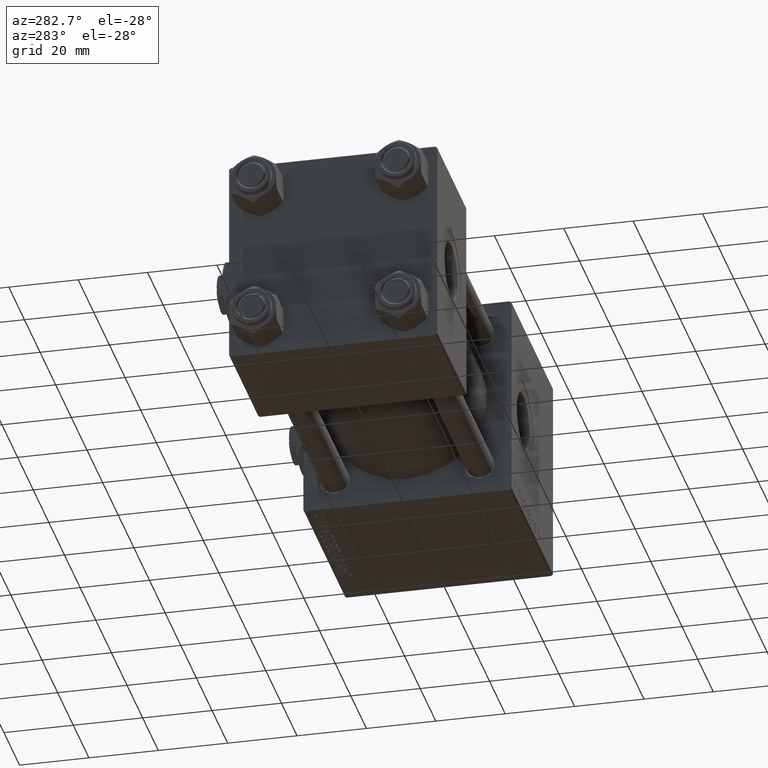
[diagram: clean part render]
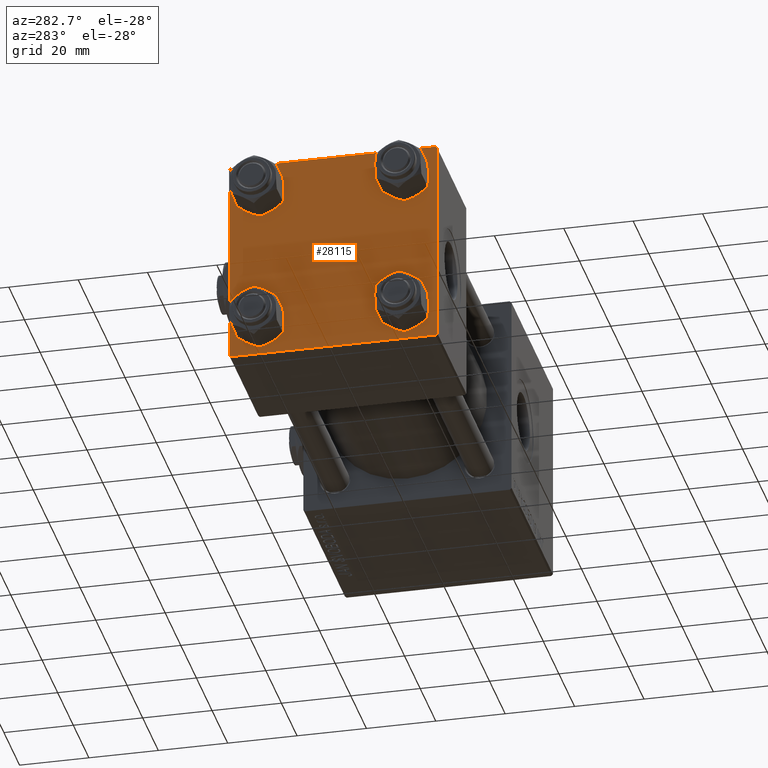
[diagram: same view with one face highlighted and labeled with its STEP entity id]
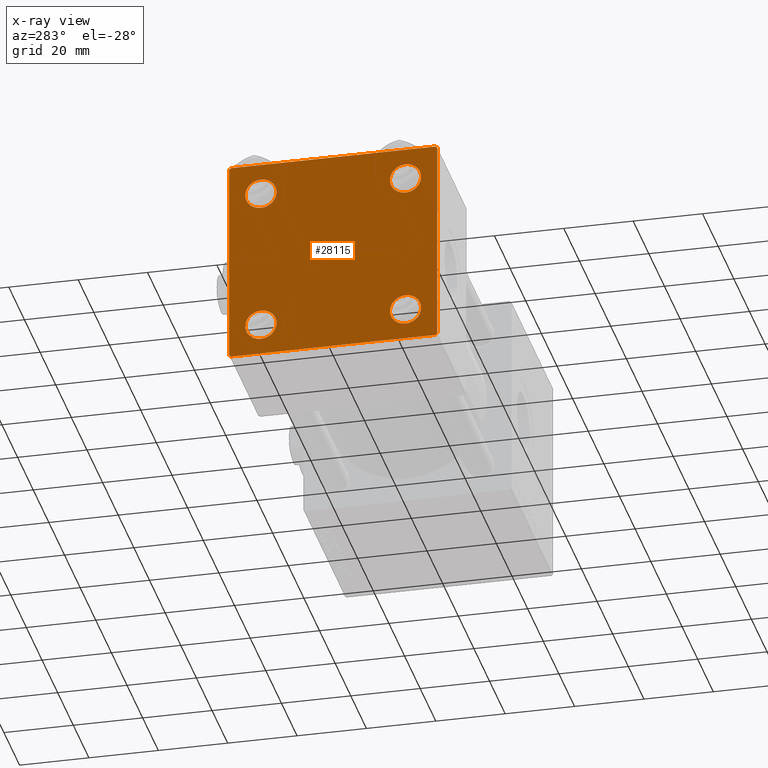
[diagram: x-ray of the same camera — body ghosted, the highlighted face saturated]
A machine part, auxiliary view. The second image highlights one B-rep face of the part: STEP entity #28115.
The next image is the same camera in x-ray: the body ghosted, the highlighted face saturated — about 0% of this face is hidden behind the body in this view.
In plain terms, the highlighted planar face has unit normal (-1, 0, 0).
Its self-contained STEP definition (entity closure, byte-faithful):
#132 = CARTESIAN_POINT ( 'NONE',  ( 0.000000000000000000, 29.99999999999999289, 29.50000000000000000 ) ) ;
#1140 = VECTOR ( 'NONE', #26643, 999.9999999999998863 ) ;
#1359 = CARTESIAN_POINT ( 'NONE',  ( 0.000000000000000000, 20.84999999999999787, 25.35000000000001918 ) ) ;
#2050 = EDGE_LOOP ( 'NONE', ( #32117, #32986 ) ) ;
#3521 = VERTEX_POINT ( 'NONE', #50559 ) ;
#3821 = CARTESIAN_POINT ( 'NONE',  ( 0.000000000000000000, 20.84999999999999787, -20.85000000000000142 ) ) ;
#4052 = CARTESIAN_POINT ( 'NONE',  ( 0.000000000000000000, 29.49999999999997868, -30.00000000000000000 ) ) ;
#4774 = DIRECTION ( 'NONE',  ( 1.000000000000000000, -0.000000000000000000, 0.000000000000000000 ) ) ;
#4954 = VECTOR ( 'NONE', #24931, 1000.000000000000114 ) ;
#5224 = EDGE_LOOP ( 'NONE', ( #24616, #50191, #20004, #10166, #35507, #42538, #9103, #32421 ) ) ;
#5303 = DIRECTION ( 'NONE',  ( -0.000000000000000000, 0.7071067811865474617, 0.7071067811865474617 ) ) ;
#5859 = LINE ( 'NONE', #6890, #50387 ) ;
#6136 = DIRECTION ( 'NONE',  ( 0.000000000000000000, 0.000000000000000000, -1.000000000000000000 ) ) ;
#6890 = CARTESIAN_POINT ( 'NONE',  ( 0.000000000000000000, 29.99999999999999289, 30.00000000000000000 ) ) ;
#7047 = DIRECTION ( 'NONE',  ( -1.000000000000000000, 0.000000000000000000, -0.000000000000000000 ) ) ;
#7123 = AXIS2_PLACEMENT_3D ( 'NONE', #3821, #36185, #48392 ) ;
#7192 = EDGE_CURVE ( 'NONE', #39348, #44204, #7542, .T. ) ;
#7378 = EDGE_CURVE ( 'NONE', #3521, #48752, #39028, .T. ) ;
#7542 = CIRCLE ( 'NONE', #20279, 4.500000000000017764 ) ;
#7952 = CARTESIAN_POINT ( 'NONE',  ( 0.000000000000000000, -20.84999999999999076, 20.85000000000000497 ) ) ;
#8229 = DIRECTION ( 'NONE',  ( 0.000000000000000000, 0.000000000000000000, 1.000000000000000000 ) ) ;
#8331 = CARTESIAN_POINT ( 'NONE',  ( 0.000000000000000000, 20.84999999999999787, 20.85000000000000142 ) ) ;
#9068 = ORIENTED_EDGE ( 'NONE', *, *, #48962, .T. ) ;
#9103 = ORIENTED_EDGE ( 'NONE', *, *, #50490, .F. ) ;
#9568 = EDGE_CURVE ( 'NONE', #44251, #49807, #38210, .T. ) ;
#9584 = EDGE_CURVE ( 'NONE', #48569, #12189, #13625, .T. ) ;
#10166 = ORIENTED_EDGE ( 'NONE', *, *, #38864, .T. ) ;
#10458 = LINE ( 'NONE', #30883, #1140 ) ;
#10781 = DIRECTION ( 'NONE',  ( 0.000000000000000000, 0.7071067811865474617, -0.7071067811865474617 ) ) ;
#10842 = CIRCLE ( 'NONE', #43037, 4.500000000000017764 ) ;
#11145 = EDGE_CURVE ( 'NONE', #43224, #43757, #30426, .T. ) ;
#11344 = CIRCLE ( 'NONE', #7123, 4.500000000000017764 ) ;
#11486 = DIRECTION ( 'NONE',  ( 1.000000000000000000, -0.000000000000000000, 0.000000000000000000 ) ) ;
#11843 = VECTOR ( 'NONE', #6136, 1000.000000000000000 ) ;
#12189 = VERTEX_POINT ( 'NONE', #33282 ) ;
#12221 = DIRECTION ( 'NONE',  ( 1.000000000000000000, -0.000000000000000000, 0.000000000000000000 ) ) ;
#12440 = CARTESIAN_POINT ( 'NONE',  ( 0.000000000000000000, -29.49999999999998579, 29.99999999999999289 ) ) ;
#13625 = CIRCLE ( 'NONE', #20390, 4.500000000000017764 ) ;
#13853 = CARTESIAN_POINT ( 'NONE',  ( 0.000000000000000000, 29.99999999999999289, 30.00000000000000000 ) ) ;
#14768 = FACE_BOUND ( 'NONE', #2050, .T. ) ;
#14873 = CARTESIAN_POINT ( 'NONE',  ( 0.000000000000000000, 20.84999999999999787, 16.34999999999998366 ) ) ;
#15549 = AXIS2_PLACEMENT_3D ( 'NONE', #36023, #36545, #39497 ) ;
#15718 = EDGE_CURVE ( 'NONE', #27554, #34402, #35832, .T. ) ;
#16481 = DIRECTION ( 'NONE',  ( 0.000000000000000000, -1.000000000000000000, -1.156482317317871725E-16 ) ) ;
#16740 = LINE ( 'NONE', #45927, #52084 ) ;
#16890 = EDGE_CURVE ( 'NONE', #3521, #46345, #26536, .T. ) ;
#17032 = CARTESIAN_POINT ( 'NONE',  ( 0.000000000000000000, 20.84999999999999787, -16.34999999999998366 ) ) ;
#17249 = ORIENTED_EDGE ( 'NONE', *, *, #15718, .T. ) ;
#17514 = DIRECTION ( 'NONE',  ( 1.000000000000000000, -0.000000000000000000, 0.000000000000000000 ) ) ;
#17715 = EDGE_LOOP ( 'NONE', ( #9068, #48011 ) ) ;
#18155 = AXIS2_PLACEMENT_3D ( 'NONE', #7952, #40581, #44050 ) ;
#19503 = DIRECTION ( 'NONE',  ( 0.000000000000000000, 0.000000000000000000, 1.000000000000000000 ) ) ;
#20004 = ORIENTED_EDGE ( 'NONE', *, *, #50363, .T. ) ;
#20279 = AXIS2_PLACEMENT_3D ( 'NONE', #49349, #17514, #41389 ) ;
#20390 = AXIS2_PLACEMENT_3D ( 'NONE', #49092, #4774, #44597 ) ;
#21757 = EDGE_CURVE ( 'NONE', #34402, #27554, #31513, .T. ) ;
#22071 = ORIENTED_EDGE ( 'NONE', *, *, #21757, .T. ) ;
#23081 = DIRECTION ( 'NONE',  ( 0.000000000000000000, -1.000000000000000000, -1.156482317317871725E-16 ) ) ;
#23154 = AXIS2_PLACEMENT_3D ( 'NONE', #47130, #7047, #39424 ) ;
#23240 = FACE_OUTER_BOUND ( 'NONE', #5224, .T. ) ;
#23507 = CARTESIAN_POINT ( 'NONE',  ( 0.000000000000000000, 29.49999999999999289, 30.00000000000000000 ) ) ;
#23711 = CARTESIAN_POINT ( 'NONE',  ( 0.000000000000000000, -30.00000000000000000, -29.50000000000001776 ) ) ;
#24085 = VERTEX_POINT ( 'NONE', #34170 ) ;
#24616 = ORIENTED_EDGE ( 'NONE', *, *, #28575, .T. ) ;
#24931 = DIRECTION ( 'NONE',  ( 0.000000000000000000, -0.7071067811865474617, 0.7071067811865474617 ) ) ;
#25041 = ORIENTED_EDGE ( 'NONE', *, *, #9568, .T. ) ;
#25873 = EDGE_CURVE ( 'NONE', #44204, #39348, #11344, .T. ) ;
#26349 = CARTESIAN_POINT ( 'NONE',  ( 0.000000000000000000, 20.84999999999999787, -25.35000000000001918 ) ) ;
#26536 = LINE ( 'NONE', #42723, #31766 ) ;
#26643 = DIRECTION ( 'NONE',  ( -0.000000000000000000, -0.7071067811865574537, -0.7071067811865376918 ) ) ;
#26971 = FACE_BOUND ( 'NONE', #33703, .T. ) ;
#27458 = EDGE_CURVE ( 'NONE', #45378, #29257, #10458, .T. ) ;
#27554 = VERTEX_POINT ( 'NONE', #1359 ) ;
#28115 = ADVANCED_FACE ( 'NONE', ( #34918, #43413, #14768, #26971, #23240 ), #30953, .T. ) ;
#28575 = EDGE_CURVE ( 'NONE', #43757, #45378, #29233, .T. ) ;
#29233 = LINE ( 'NONE', #13853, #40151 ) ;
#29257 = VERTEX_POINT ( 'NONE', #4052 ) ;
#30426 = LINE ( 'NONE', #46596, #51808 ) ;
#30883 = CARTESIAN_POINT ( 'NONE',  ( 0.000000000000000000, 29.74999999999957723, -29.75000000000040501 ) ) ;
#30953 = PLANE ( 'NONE',  #23154 ) ;
#31070 = CARTESIAN_POINT ( 'NONE',  ( 0.000000000000000000, -30.00000000000000000, 29.99999999999999289 ) ) ;
#31513 = CIRCLE ( 'NONE', #45083, 4.500000000000017764 ) ;
#31766 = VECTOR ( 'NONE', #5303, 1000.000000000000114 ) ;
#32117 = ORIENTED_EDGE ( 'NONE', *, *, #7192, .T. ) ;
#32421 = ORIENTED_EDGE ( 'NONE', *, *, #11145, .T. ) ;
#32986 = ORIENTED_EDGE ( 'NONE', *, *, #25873, .T. ) ;
#33237 = ORIENTED_EDGE ( 'NONE', *, *, #41477, .T. ) ;
#33282 = CARTESIAN_POINT ( 'NONE',  ( 0.000000000000000000, -20.84999999999999076, 25.35000000000002274 ) ) ;
#33703 = EDGE_LOOP ( 'NONE', ( #17249, #22071 ) ) ;
#34170 = CARTESIAN_POINT ( 'NONE',  ( 0.000000000000000000, -29.50000000000000000, -30.00000000000000711 ) ) ;
#34402 = VERTEX_POINT ( 'NONE', #14873 ) ;
#34918 = FACE_BOUND ( 'NONE', #17715, .T. ) ;
#35507 = ORIENTED_EDGE ( 'NONE', *, *, #7378, .F. ) ;
#35832 = CIRCLE ( 'NONE', #15549, 4.500000000000017764 ) ;
#36023 = CARTESIAN_POINT ( 'NONE',  ( 0.000000000000000000, 20.84999999999999787, 20.85000000000000142 ) ) ;
#36185 = DIRECTION ( 'NONE',  ( 1.000000000000000000, -0.000000000000000000, 0.000000000000000000 ) ) ;
#36352 = CARTESIAN_POINT ( 'NONE',  ( 0.000000000000000000, -20.84999999999999076, -20.85000000000000497 ) ) ;
#36545 = DIRECTION ( 'NONE',  ( 1.000000000000000000, -0.000000000000000000, 0.000000000000000000 ) ) ;
#37437 = DIRECTION ( 'NONE',  ( 0.000000000000000000, 0.000000000000000000, 1.000000000000000000 ) ) ;
#37555 = EDGE_LOOP ( 'NONE', ( #25041, #33237 ) ) ;
#38210 = CIRCLE ( 'NONE', #50904, 4.500000000000017764 ) ;
#38223 = CARTESIAN_POINT ( 'NONE',  ( 0.000000000000000000, -20.84999999999999076, -25.35000000000002274 ) ) ;
#38864 = EDGE_CURVE ( 'NONE', #24085, #48752, #45616, .T. ) ;
#39028 = LINE ( 'NONE', #31070, #11843 ) ;
#39348 = VERTEX_POINT ( 'NONE', #17032 ) ;
#39424 = DIRECTION ( 'NONE',  ( -0.000000000000000000, 0.000000000000000000, 1.000000000000000000 ) ) ;
#39497 = DIRECTION ( 'NONE',  ( 0.000000000000000000, 0.000000000000000000, 1.000000000000000000 ) ) ;
#40151 = VECTOR ( 'NONE', #45431, 1000.000000000000000 ) ;
#40581 = DIRECTION ( 'NONE',  ( 1.000000000000000000, -0.000000000000000000, 0.000000000000000000 ) ) ;
#40698 = DIRECTION ( 'NONE',  ( 1.000000000000000000, -0.000000000000000000, 0.000000000000000000 ) ) ;
#41389 = DIRECTION ( 'NONE',  ( 0.000000000000000000, 0.000000000000000000, 1.000000000000000000 ) ) ;
#41477 = EDGE_CURVE ( 'NONE', #49807, #44251, #10842, .T. ) ;
#42538 = ORIENTED_EDGE ( 'NONE', *, *, #16890, .T. ) ;
#42723 = CARTESIAN_POINT ( 'NONE',  ( -0.000000000000000000, -29.74999999999999645, 29.74999999999999645 ) ) ;
#42737 = CIRCLE ( 'NONE', #18155, 4.500000000000017764 ) ;
#43037 = AXIS2_PLACEMENT_3D ( 'NONE', #47821, #11486, #37437 ) ;
#43224 = VERTEX_POINT ( 'NONE', #23507 ) ;
#43413 = FACE_BOUND ( 'NONE', #37555, .T. ) ;
#43757 = VERTEX_POINT ( 'NONE', #132 ) ;
#44050 = DIRECTION ( 'NONE',  ( 0.000000000000000000, 0.000000000000000000, 1.000000000000000000 ) ) ;
#44204 = VERTEX_POINT ( 'NONE', #26349 ) ;
#44251 = VERTEX_POINT ( 'NONE', #47794 ) ;
#44597 = DIRECTION ( 'NONE',  ( 0.000000000000000000, 0.000000000000000000, 1.000000000000000000 ) ) ;
#45083 = AXIS2_PLACEMENT_3D ( 'NONE', #8331, #40698, #19503 ) ;
#45378 = VERTEX_POINT ( 'NONE', #50168 ) ;
#45431 = DIRECTION ( 'NONE',  ( 0.000000000000000000, 0.000000000000000000, -1.000000000000000000 ) ) ;
#45616 = LINE ( 'NONE', #50399, #4954 ) ;
#45927 = CARTESIAN_POINT ( 'NONE',  ( 0.000000000000000000, 29.99999999999999289, -30.00000000000000000 ) ) ;
#46345 = VERTEX_POINT ( 'NONE', #12440 ) ;
#46596 = CARTESIAN_POINT ( 'NONE',  ( 0.000000000000000000, 29.74999999999999645, 29.74999999999999645 ) ) ;
#47130 = CARTESIAN_POINT ( 'NONE',  ( 0.000000000000000000, 0.000000000000000000, 0.000000000000000000 ) ) ;
#47153 = CARTESIAN_POINT ( 'NONE',  ( 0.000000000000000000, -20.84999999999999076, 16.34999999999998721 ) ) ;
#47794 = CARTESIAN_POINT ( 'NONE',  ( 0.000000000000000000, -20.84999999999999076, -16.34999999999998721 ) ) ;
#47821 = CARTESIAN_POINT ( 'NONE',  ( 0.000000000000000000, -20.84999999999999076, -20.85000000000000497 ) ) ;
#48011 = ORIENTED_EDGE ( 'NONE', *, *, #9584, .T. ) ;
#48392 = DIRECTION ( 'NONE',  ( 0.000000000000000000, 0.000000000000000000, 1.000000000000000000 ) ) ;
#48569 = VERTEX_POINT ( 'NONE', #47153 ) ;
#48752 = VERTEX_POINT ( 'NONE', #23711 ) ;
#48962 = EDGE_CURVE ( 'NONE', #12189, #48569, #42737, .T. ) ;
#49092 = CARTESIAN_POINT ( 'NONE',  ( 0.000000000000000000, -20.84999999999999076, 20.85000000000000497 ) ) ;
#49349 = CARTESIAN_POINT ( 'NONE',  ( 0.000000000000000000, 20.84999999999999787, -20.85000000000000142 ) ) ;
#49807 = VERTEX_POINT ( 'NONE', #38223 ) ;
#50168 = CARTESIAN_POINT ( 'NONE',  ( 0.000000000000000000, 29.99999999999999289, -29.50000000000000000 ) ) ;
#50191 = ORIENTED_EDGE ( 'NONE', *, *, #27458, .T. ) ;
#50363 = EDGE_CURVE ( 'NONE', #29257, #24085, #16740, .T. ) ;
#50387 = VECTOR ( 'NONE', #23081, 1000.000000000000000 ) ;
#50399 = CARTESIAN_POINT ( 'NONE',  ( 0.000000000000000000, -29.75000000000001066, -29.75000000000001066 ) ) ;
#50490 = EDGE_CURVE ( 'NONE', #43224, #46345, #5859, .T. ) ;
#50559 = CARTESIAN_POINT ( 'NONE',  ( 0.000000000000000000, -30.00000000000000000, 29.49999999999999289 ) ) ;
#50904 = AXIS2_PLACEMENT_3D ( 'NONE', #36352, #12221, #8229 ) ;
#51808 = VECTOR ( 'NONE', #10781, 1000.000000000000114 ) ;
#52084 = VECTOR ( 'NONE', #16481, 1000.000000000000000 ) ;